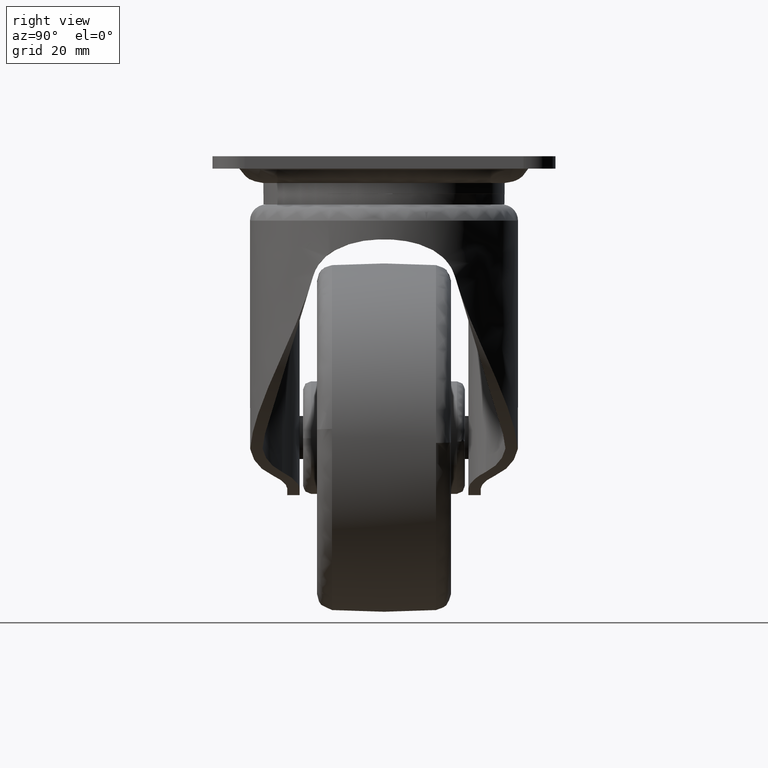
[diagram: clean part render]
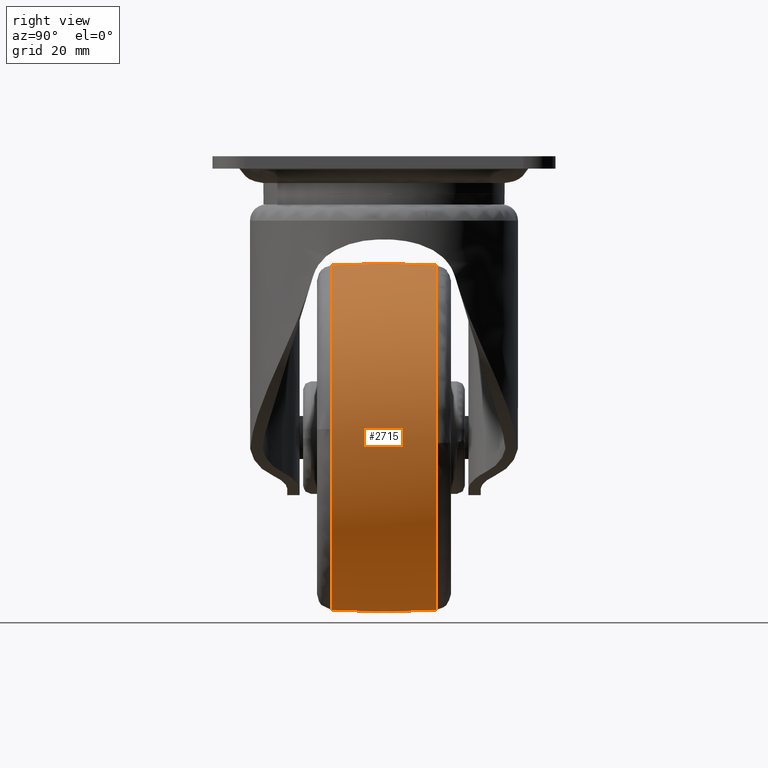
[diagram: same view with one face highlighted and labeled with its STEP entity id]
A machine part, right view. The second image highlights one B-rep face of the part: STEP entity #2715.
In plain terms, the highlighted face is a freeform B-spline surface patch.
Its self-contained STEP definition (entity closure, byte-faithful):
#1386=CARTESIAN_POINT('',(9.844275728294139,-9.693883517434870,-21.855966472353590));
#1387=VERTEX_POINT('',#1386);
#1401=CARTESIAN_POINT('',(0.0,-9.693883663936568,-20.313565679751651));
#1402=VERTEX_POINT('',#1401);
#1403=CARTESIAN_POINT('',(9.844275728294139,-9.693883517434870,-21.855966472353590));
#1404=CARTESIAN_POINT('',(8.504810927952031,-9.693883558310764,-21.425616742742939));
#1405=CARTESIAN_POINT('',(5.262764704990568,-9.693883635381503,-20.614199115135929));
#1406=CARTESIAN_POINT('',(1.927986621144068,-9.693883663957207,-20.313348455693951));
#1407=CARTESIAN_POINT('',(0.0,-9.693883663936568,-20.313565679751651));
#1408=B_SPLINE_CURVE_WITH_KNOTS('',3,(#1403,#1404,#1405,#1406,#1407),.UNSPECIFIED.,.F.,.U.,(4,1,4),(1.949923E-009,4.220700222188887,10.004611641356281),.UNSPECIFIED.);
#1409=EDGE_CURVE('',#1387,#1402,#1408,.T.);
#1411=CARTESIAN_POINT('',(-31.971165369633010,-9.693893669516193,-48.783671510166670));
#1412=VERTEX_POINT('',#1411);
#1431=CARTESIAN_POINT('',(0.0,-9.693877551020432,-84.686434716128545));
#1432=VERTEX_POINT('',#1431);
#1433=CARTESIAN_POINT('',(-31.971165369633010,-9.693893669516193,-48.783671510166670));
#1434=CARTESIAN_POINT('',(-32.208094472459003,-9.693893212536583,-50.819706866073673));
#1435=CARTESIAN_POINT('',(-32.270720698918083,-9.693892444402364,-53.943193427946220));
#1436=CARTESIAN_POINT('',(-31.672086479086751,-9.693891115340083,-58.718025455754557));
#1437=CARTESIAN_POINT('',(-30.677411148497569,-9.693889931071917,-62.561916824716867));
#1438=CARTESIAN_POINT('',(-29.096144237818208,-9.693888610513774,-66.427758816983058));
#1439=CARTESIAN_POINT('',(-27.421986811460130,-9.693887476327280,-69.466563395674953));
#1440=CARTESIAN_POINT('',(-25.074624415214171,-9.693886110046346,-72.832805905174993));
#1441=CARTESIAN_POINT('',(-22.393860996321820,-9.693884778211826,-75.764587548328208));
#1442=CARTESIAN_POINT('',(-19.286668454176191,-9.693883441053233,-78.337899939162199));
#1443=CARTESIAN_POINT('',(-16.169345467432901,-9.693882223745844,-80.423538216632593));
#1444=CARTESIAN_POINT('',(-12.690328933718050,-9.693881007995609,-82.180871736360331));
#1445=CARTESIAN_POINT('',(-8.612693535930568,-9.693879742222716,-83.604916905531326));
#1446=CARTESIAN_POINT('',(-4.452880233060959,-9.693878595397983,-84.480734351234531));
#1447=CARTESIAN_POINT('',(-1.484296403265089,-9.693877881964193,-84.686493025305111));
#1448=CARTESIAN_POINT('',(0.0,-9.693877551020432,-84.686434716128545));
#1449=B_SPLINE_CURVE_WITH_KNOTS('',3,(#1433,#1434,#1435,#1436,#1437,#1438,#1439,#1440,#1441,#1442,#1443,#1444,#1445,#1446,#1447,#1448),.UNSPECIFIED.,.F.,.U.,(4,1,1,1,1,1,1,1,1,1,1,1,1,4),(0.000000024375005,6.149247909914919,9.329890752547875,14.418942462884569,18.023682064267259,21.840459640395149,24.809079049199742,30.322155696321289,33.714859527527892,36.895508759237572,41.560473641898767,45.377251897362733,49.830177674104789,54.283066886365447),.UNSPECIFIED.);
#1450=EDGE_CURVE('',#1412,#1432,#1449,.T.);
#1452=CARTESIAN_POINT('',(32.145781743739541,-9.693880755091454,-50.882814538475202));
#1453=VERTEX_POINT('',#1452);
#1454=CARTESIAN_POINT('',(0.0,-9.693877551020432,-84.686434716128545));
#1455=CARTESIAN_POINT('',(1.766382899471768,-9.693877551238472,-84.686560168550670));
#1456=CARTESIAN_POINT('',(4.551781984300336,-9.693877573374069,-84.456549192305062));
#1457=CARTESIAN_POINT('',(8.208715657072276,-9.693877648411091,-83.668885985581042));
#1458=CARTESIAN_POINT('',(11.193549547598611,-9.693877737423623,-82.732661568572510));
#1459=CARTESIAN_POINT('',(14.010993195543261,-9.693877851211148,-81.534482572513909));
#1460=CARTESIAN_POINT('',(16.815541527195659,-9.693877996698921,-80.001407641631602));
#1461=CARTESIAN_POINT('',(20.026219627901991,-9.693878202904250,-77.827466564101158));
#1462=CARTESIAN_POINT('',(23.477077402883321,-9.693878496499581,-74.730668082416784));
#1463=CARTESIAN_POINT('',(26.457314429987669,-9.693878849509844,-71.005567340953462));
#1464=CARTESIAN_POINT('',(28.516704975127318,-9.693879176021705,-67.559121962454682));
#1465=CARTESIAN_POINT('',(30.079769951108620,-9.693879498000353,-64.159888725099179));
#1466=CARTESIAN_POINT('',(31.214838988964811,-9.693879829193499,-60.662724571810642));
#1467=CARTESIAN_POINT('',(32.104646150909289,-9.693880259081260,-56.122612304893252));
#1468=CARTESIAN_POINT('',(32.248413938412561,-9.693880562416370,-52.918375115787697));
#1469=CARTESIAN_POINT('',(32.145781743739541,-9.693880755091454,-50.882814538475202));
#1470=B_SPLINE_CURVE_WITH_KNOTS('',3,(#1454,#1455,#1456,#1457,#1458,#1459,#1460,#1461,#1462,#1463,#1464,#1465,#1466,#1467,#1468,#1469),.UNSPECIFIED.,.F.,.U.,(4,1,1,1,1,1,1,1,1,1,1,1,1,4),(0.000000027931790,5.299130619662996,8.356348718884966,11.209746673638600,14.674586740677340,17.527987529842171,20.789011528867270,26.291940360234030,31.387273652478729,35.055942117707623,38.316959383191190,42.597054281083707,46.061902000319357,52.176287282159173),.UNSPECIFIED.);
#1471=EDGE_CURVE('',#1432,#1453,#1470,.T.);
#1580=CARTESIAN_POINT('',(32.145781743739541,-9.693880755091454,-50.882814538475202));
#1581=CARTESIAN_POINT('',(32.084677296176217,-9.693880870814368,-49.667609403138719));
#1582=CARTESIAN_POINT('',(31.818983196464639,-9.693881106394585,-47.193651991663849));
#1583=CARTESIAN_POINT('',(31.067336141740199,-9.693881422371538,-43.875034132493937));
#1584=CARTESIAN_POINT('',(30.048521856571551,-9.693881710854676,-40.844864541261188));
#1585=CARTESIAN_POINT('',(28.639395790687370,-9.693882016053850,-37.638802851009373));
#1586=CARTESIAN_POINT('',(26.334387355567220,-9.693882386593465,-33.745797388408661));
#1587=CARTESIAN_POINT('',(22.998961226938249,-9.693882765229022,-29.766812493859710));
#1588=CARTESIAN_POINT('',(19.282100250083580,-9.693883066306253,-26.601877856159639));
#1589=CARTESIAN_POINT('',(15.001912923174570,-9.693883326256046,-23.868264417365658));
#1590=CARTESIAN_POINT('',(11.871663244997610,-9.693883455621226,-22.506938980845970));
#1591=CARTESIAN_POINT('',(9.844275728294139,-9.693883517434870,-21.855966472353590));
#1592=B_SPLINE_CURVE_WITH_KNOTS('',3,(#1580,#1581,#1582,#1583,#1584,#1585,#1586,#1587,#1588,#1589,#1590,#1591),.UNSPECIFIED.,.F.,.U.,(4,1,1,1,1,1,1,1,1,4),(0.000000028117157,3.650221634623520,7.452567633593933,10.190256171371470,13.232134282121640,17.947044360858779,23.726560373611100,28.745645031160372,32.547979716475908,38.935900776177228),.UNSPECIFIED.);
#1593=EDGE_CURVE('',#1453,#1387,#1592,.T.);
#1622=CARTESIAN_POINT('',(32.171227503708117,9.693880657307908,-53.489289725905302));
#1623=VERTEX_POINT('',#1622);
#1624=CARTESIAN_POINT('',(0.0,9.693883766037088,-20.313565686363820));
#1625=VERTEX_POINT('',#1624);
#1626=CARTESIAN_POINT('',(32.171227503708117,9.693880657307908,-53.489289725905302));
#1627=CARTESIAN_POINT('',(32.227091496303672,9.693880823414778,-51.677913611145463));
#1628=CARTESIAN_POINT('',(32.082173546658836,9.693881070590379,-48.987467954108993));
#1629=CARTESIAN_POINT('',(31.401026079641429,9.693881417711285,-45.219560425108789));
#1630=CARTESIAN_POINT('',(30.441704630763020,9.693881734452216,-41.788788574926507));
#1631=CARTESIAN_POINT('',(28.695223254152509,9.693882119380675,-37.632111785401072));
#1632=CARTESIAN_POINT('',(26.072015645480150,9.693882513571111,-33.393625573914782));
#1633=CARTESIAN_POINT('',(23.031561007455920,9.693882841815512,-29.882895448492871));
#1634=CARTESIAN_POINT('',(20.265690832069531,9.693883072517167,-27.429147130527820));
#1635=CARTESIAN_POINT('',(17.440564233646299,9.693883266691463,-25.374752565508700));
#1636=CARTESIAN_POINT('',(14.642467122960729,9.693883420117210,-23.763827262076241));
#1637=CARTESIAN_POINT('',(11.319396079215741,9.693883560354307,-22.308077206998561));
#1638=CARTESIAN_POINT('',(8.181440393446676,9.693883658770691,-21.304034009454980));
#1639=CARTESIAN_POINT('',(4.295610000675810,9.693883738902555,-20.515557981892108));
#1640=CARTESIAN_POINT('',(1.610866264177086,9.693883762821251,-20.313479807896350));
#1641=CARTESIAN_POINT('',(0.0,9.693883766037088,-20.313565686363820));
#1642=B_SPLINE_CURVE_WITH_KNOTS('',3,(#1626,#1627,#1628,#1629,#1630,#1631,#1632,#1633,#1634,#1635,#1636,#1637,#1638,#1639,#1640,#1641),.UNSPECIFIED.,.F.,.U.,(4,1,1,1,1,1,1,1,1,1,1,1,1,4),(0.000000032015578,5.436681094595784,8.054348261697491,11.477450065654221,16.108715865252439,21.545417524590562,26.377969969240230,30.002451598888420,32.620117457548297,36.848665798530000,39.667694081109467,43.493523169018601,46.715272978272267,51.547862656434923),.UNSPECIFIED.);
#1643=EDGE_CURVE('',#1623,#1625,#1642,.T.);
#1700=CARTESIAN_POINT('',(-32.061988340695287,9.693893651880931,-49.672383288995938));
#1701=VERTEX_POINT('',#1700);
#1715=CARTESIAN_POINT('',(-31.971165363881081,9.693893757082897,-48.783671509798538));
#1716=VERTEX_POINT('',#1715);
#1717=CARTESIAN_POINT('',(-31.971165363881081,9.693893757082897,-48.783671509798538));
#1718=CARTESIAN_POINT('',(-32.061988340695287,9.693893651880931,-49.672383288995938));
#1719=QUASI_UNIFORM_CURVE('',1,(#1717,#1718),.UNSPECIFIED.,.F.,.U.);
#1720=EDGE_CURVE('',#1716,#1701,#1719,.T.);
#1770=CARTESIAN_POINT('',(0.0,9.693877551020471,-84.686434716128545));
#1771=VERTEX_POINT('',#1770);
#1772=CARTESIAN_POINT('',(0.0,9.693877551020471,-84.686434716128545));
#1773=CARTESIAN_POINT('',(2.000834256087459,9.693877551001618,-84.686623970980833));
#1774=CARTESIAN_POINT('',(5.808785043346568,9.693877586487989,-84.330226623146373));
#1775=CARTESIAN_POINT('',(10.739431804783489,9.693877722735994,-82.961856992590569));
#1776=CARTESIAN_POINT('',(14.467016808845219,9.693877886320548,-81.318940340899530));
#1777=CARTESIAN_POINT('',(17.606186361354169,9.693878065438021,-79.520023275011894));
#1778=CARTESIAN_POINT('',(21.006299050085499,9.693878311559297,-77.048172401358116));
#1779=CARTESIAN_POINT('',(23.864615222317411,9.693878592572290,-74.225894441185545));
#1780=CARTESIAN_POINT('',(26.386202483244869,9.693878910529374,-71.032580738271065));
#1781=CARTESIAN_POINT('',(28.155686409309439,9.693879187748376,-68.248407290778346));
#1782=CARTESIAN_POINT('',(30.034678889595309,9.693879576180960,-64.347290640753016));
#1783=CARTESIAN_POINT('',(31.592717211918512,9.693880054712157,-59.541297195694128));
#1784=CARTESIAN_POINT('',(32.106004339883960,9.693880445331160,-55.618216589830240));
#1785=CARTESIAN_POINT('',(32.171227503708117,9.693880657307908,-53.489289725905302));
#1786=B_SPLINE_CURVE_WITH_KNOTS('',3,(#1772,#1773,#1774,#1775,#1776,#1777,#1778,#1779,#1780,#1781,#1782,#1783,#1784,#1785),.UNSPECIFIED.,.F.,.U.,(4,1,1,1,1,1,1,1,1,1,1,4),(0.000000034309323,6.002473706288768,11.424096123992809,15.296682059725450,18.201120349266802,22.267316980466219,27.882513557720468,30.206070270929750,34.465914492820993,37.757608727887423,43.179231199456773,49.568962601481111),.UNSPECIFIED.);
#1787=EDGE_CURVE('',#1771,#1623,#1786,.T.);
#1789=CARTESIAN_POINT('',(-32.061988340695287,9.693893651880931,-49.672383288995938));
#1790=CARTESIAN_POINT('',(-32.178064263241851,9.693893340298265,-50.988102199336382));
#1791=CARTESIAN_POINT('',(-32.246050466128906,9.693892694845298,-53.564228652423971));
#1792=CARTESIAN_POINT('',(-31.875649534688481,9.693891599225983,-57.516159293921319));
#1793=CARTESIAN_POINT('',(-30.947590089884571,9.693890311420615,-61.734451412006088));
#1794=CARTESIAN_POINT('',(-29.599742397639648,9.693889091361696,-65.324836664709096));
#1795=CARTESIAN_POINT('',(-27.826756232133992,9.693887808076807,-68.793462670686608));
#1796=CARTESIAN_POINT('',(-26.080468549336850,9.693886730956313,-71.481190841577558));
#1797=CARTESIAN_POINT('',(-23.822479347891651,9.693885527243976,-74.219289234477984));
#1798=CARTESIAN_POINT('',(-21.358012220168849,9.693884349542421,-76.677050749259848));
#1799=CARTESIAN_POINT('',(-18.622194355817509,9.693883188967460,-78.832928001629341));
#1800=CARTESIAN_POINT('',(-15.373783390559970,9.693881948301071,-80.857048165242290));
#1801=CARTESIAN_POINT('',(-12.101569822030100,9.693880822401601,-82.412963391853992));
#1802=CARTESIAN_POINT('',(-8.071120351789807,9.693879583681420,-83.751942723335958));
#1803=CARTESIAN_POINT('',(-4.101540274187450,9.693878504856988,-84.520074607576888));
#1804=CARTESIAN_POINT('',(-1.251310816879209,9.693877829001004,-84.686455217106257));
#1805=CARTESIAN_POINT('',(0.0,9.693877551020471,-84.686434716128545));
#1806=B_SPLINE_CURVE_WITH_KNOTS('',3,(#1789,#1790,#1791,#1792,#1793,#1794,#1795,#1796,#1797,#1798,#1799,#1800,#1801,#1802,#1803,#1804,#1805),.UNSPECIFIED.,.F.,.U.,(4,1,1,1,1,1,1,1,1,1,1,1,1,1,4),(0.000000027445729,3.962489687065229,7.716459743857627,11.887548328257481,16.892835911549579,19.186936331934341,23.566577182844519,26.486306322095810,29.823114511977479,33.994205471242722,36.913956524085521,41.293594018826852,44.839016390368741,49.635748778764167,53.389692830037639),.UNSPECIFIED.);
#1807=EDGE_CURVE('',#1701,#1771,#1806,.T.);
#2644=CARTESIAN_POINT('',(-31.905901812928544,-10.659977294234080,-48.791204665595650));
#2645=CARTESIAN_POINT('',(-32.660309831098616,-5.315666E-014,-48.703511017115453));
#2646=CARTESIAN_POINT('',(-31.905901812928537,10.659977294233972,-48.791204665595643));
#2647=CARTESIAN_POINT('',(-32.120736811734794,-10.659977294234077,-50.639380086414484));
#2648=CARTESIAN_POINT('',(-32.880224556114570,-5.412787E-014,-50.595386138529662));
#2649=CARTESIAN_POINT('',(-32.120736811734808,10.659977294233970,-50.639380086414477));
#2650=CARTESIAN_POINT('',(-32.120736811734808,-10.659977294234084,-52.500000000000000));
#2651=CARTESIAN_POINT('',(-32.880224556114598,-5.784632E-014,-52.500000000000007));
#2652=CARTESIAN_POINT('',(-32.120736811734808,10.659977294233970,-52.500000000000007));
#2653=CARTESIAN_POINT('',(-32.120736811734822,-10.659977294234078,-84.620736811734801));
#2654=CARTESIAN_POINT('',(-32.880224556114598,-5.359773E-014,-85.380224556114570));
#2655=CARTESIAN_POINT('',(-32.120736811734822,10.659977294233972,-84.620736811734801));
#2656=CARTESIAN_POINT('',(0.0,-10.659977294234084,-84.620736811734801));
#2657=CARTESIAN_POINT('',(0.0,-5.784632E-014,-85.380224556114584));
#2658=CARTESIAN_POINT('',(0.0,10.659977294233970,-84.620736811734815));
#2659=CARTESIAN_POINT('',(32.120736811734801,-10.659977294234078,-84.620736811734801));
#2660=CARTESIAN_POINT('',(32.880224556114584,-5.359773E-014,-85.380224556114584));
#2661=CARTESIAN_POINT('',(32.120736811734801,10.659977294233972,-84.620736811734801));
#2662=CARTESIAN_POINT('',(32.120736811734808,-10.659977294234084,-52.500000000000000));
#2663=CARTESIAN_POINT('',(32.880224556114598,-5.784632E-014,-52.500000000000007));
#2664=CARTESIAN_POINT('',(32.120736811734808,10.659977294233970,-52.500000000000007));
#2665=CARTESIAN_POINT('',(32.120736811734822,-10.659977294234078,-20.379263188265199));
#2666=CARTESIAN_POINT('',(32.880224556114598,-5.359773E-014,-19.619775443885416));
#2667=CARTESIAN_POINT('',(32.120736811734822,10.659977294233972,-20.379263188265199));
#2668=CARTESIAN_POINT('',(0.0,-10.659977294234084,-20.379263188265195));
#2669=CARTESIAN_POINT('',(0.0,-5.784632E-014,-19.619775443885409));
#2670=CARTESIAN_POINT('',(0.0,10.659977294233970,-20.379263188265188));
#2678=(BOUNDED_SURFACE()B_SPLINE_SURFACE(2,2,((#2644,#2647,#2650,#2653,#2656,#2659,#2662,#2665,#2668),(#2645,#2648,#2651,#2654,#2657,#2660,#2663,#2666,#2669),(#2646,#2649,#2652,#2655,#2658,#2661,#2664,#2667,#2670)),.UNSPECIFIED.,.F.,.F.,.U.)B_SPLINE_SURFACE_WITH_KNOTS((3,3),(3,2,2,2,3),(0.0,21.346941618928408),(0.0,4.307820149998688,58.155583258501061,112.003346367003400,165.851109475505810),.UNSPECIFIED.)GEOMETRIC_REPRESENTATION_ITEM()RATIONAL_B_SPLINE_SURFACE(((0.854303482250585,0.871875856139840,0.892795348033879,0.631301644806560,0.892795348033879,0.631301644806560,0.892795348033879,0.631301644806560,0.892795348033879),(0.852143443167755,0.869671386693367,0.890537985299454,0.629705448309450,0.890537985299454,0.629705448309450,0.890537985299454,0.629705448309450,0.890537985299454),(0.854303482250585,0.871875856139840,0.892795348033879,0.631301644806560,0.892795348033879,0.631301644806560,0.892795348033879,0.631301644806560,0.892795348033879)))REPRESENTATION_ITEM('')SURFACE());
#2679=ORIENTED_EDGE('',*,*,#1450,.F.);
#2680=CARTESIAN_POINT('',(-31.971165369633002,-9.693893669516193,-48.783671510166670));
#2681=CARTESIAN_POINT('',(-32.594756010190302,0.000000043966981,-48.711184276119468));
#2682=CARTESIAN_POINT('',(-31.971165363881088,9.693893757082897,-48.783671509798523));
#2690=(BOUNDED_CURVE()B_SPLINE_CURVE(2,(#2680,#2681,#2682),.UNSPECIFIED.,.F.,.U.)B_SPLINE_CURVE_WITH_KNOTS((3,3),(0.453599636249291,0.546400364170730),.UNSPECIFIED.)CURVE()GEOMETRIC_REPRESENTATION_ITEM()RATIONAL_B_SPLINE_CURVE((0.854116195649743,0.852330715115519,0.854116195665905))REPRESENTATION_ITEM(''));
#2691=EDGE_CURVE('',#1412,#1716,#2690,.T.);
#2692=ORIENTED_EDGE('',*,*,#2691,.T.);
#2693=ORIENTED_EDGE('',*,*,#1720,.T.);
#2694=ORIENTED_EDGE('',*,*,#1807,.T.);
#2695=ORIENTED_EDGE('',*,*,#1787,.T.);
#2696=ORIENTED_EDGE('',*,*,#1643,.T.);
#2697=CARTESIAN_POINT('',(0.0,-9.693883663936568,-20.313565679751648));
#2698=CARTESIAN_POINT('',(0.0,0.000000051264367,-19.685777454227754));
#2699=CARTESIAN_POINT('',(0.0,9.693883766037088,-20.313565686363823));
#2707=(BOUNDED_CURVE()B_SPLINE_CURVE(2,(#2697,#2698,#2699),.UNSPECIFIED.,.F.,.U.)B_SPLINE_CURVE_WITH_KNOTS((3,3),(0.453599684241911,0.546400316247823),.UNSPECIFIED.)CURVE()GEOMETRIC_REPRESENTATION_ITEM()RATIONAL_B_SPLINE_CURVE((0.892599628697728,0.890733704625758,0.892599628717422))REPRESENTATION_ITEM(''));
#2708=EDGE_CURVE('',#1402,#1625,#2707,.T.);
#2709=ORIENTED_EDGE('',*,*,#2708,.F.);
#2710=ORIENTED_EDGE('',*,*,#1409,.F.);
#2711=ORIENTED_EDGE('',*,*,#1593,.F.);
#2712=ORIENTED_EDGE('',*,*,#1471,.F.);
#2713=EDGE_LOOP('',(#2679,#2692,#2693,#2694,#2695,#2696,#2709,#2710,#2711,#2712));
#2714=FACE_OUTER_BOUND('',#2713,.T.);
#2715=ADVANCED_FACE('',(#2714),#2678,.T.);